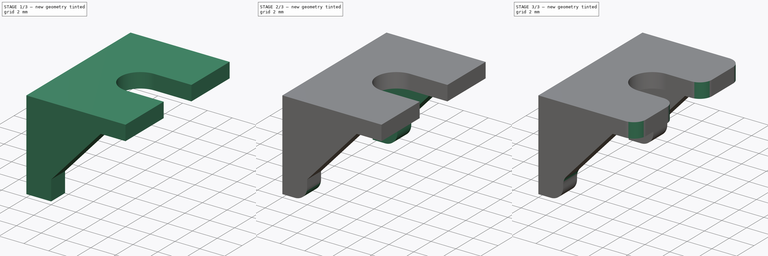
[diagram: build sequence overview — one tinted view per stage of 3, left to right]
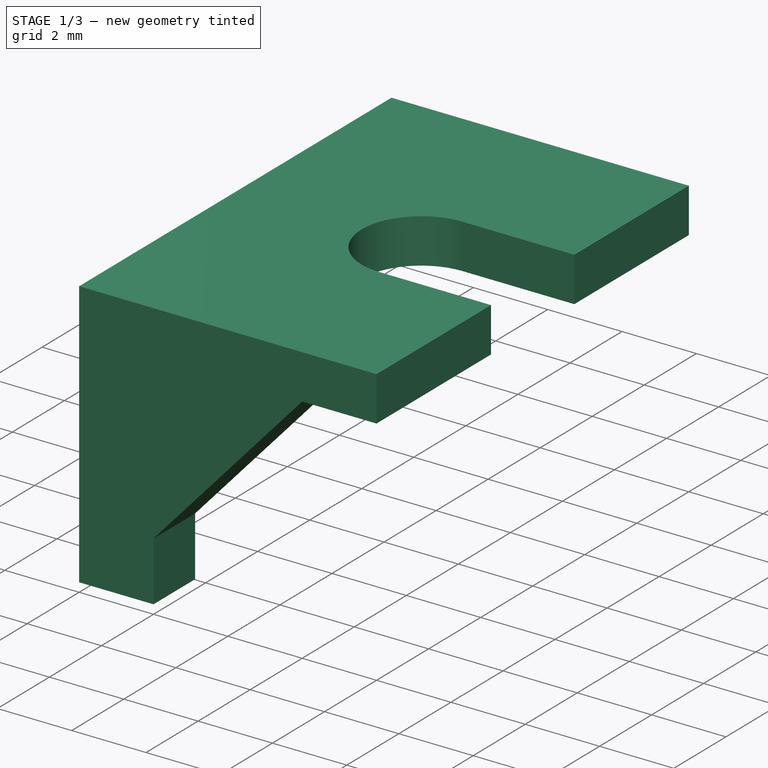
[diagram: stage 1 of 3 — iso view after this stage's code; geometry added in this stage tinted green]
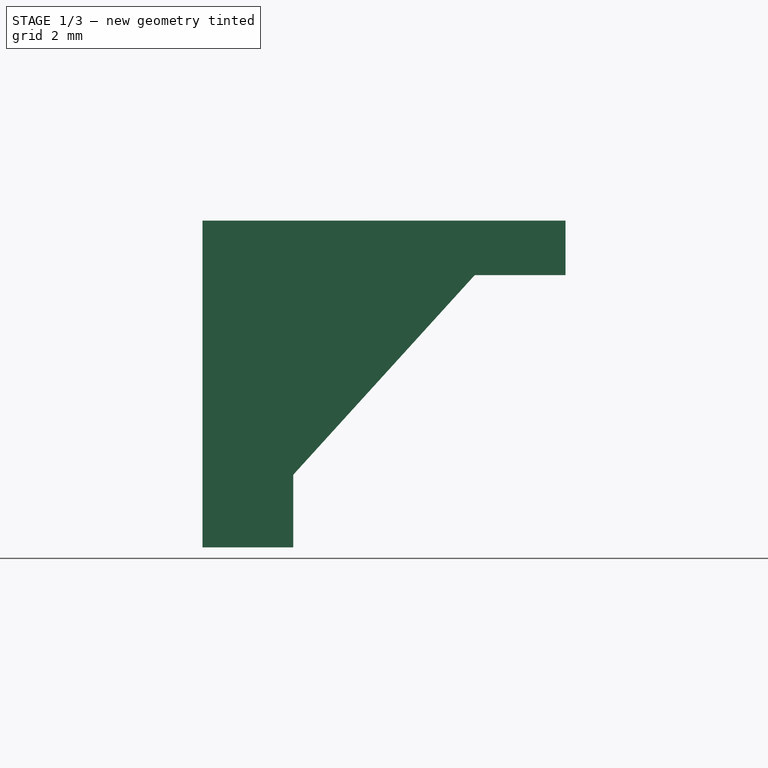
[diagram: stage 1 of 3 — front view after this stage's code; geometry added in this stage tinted green]
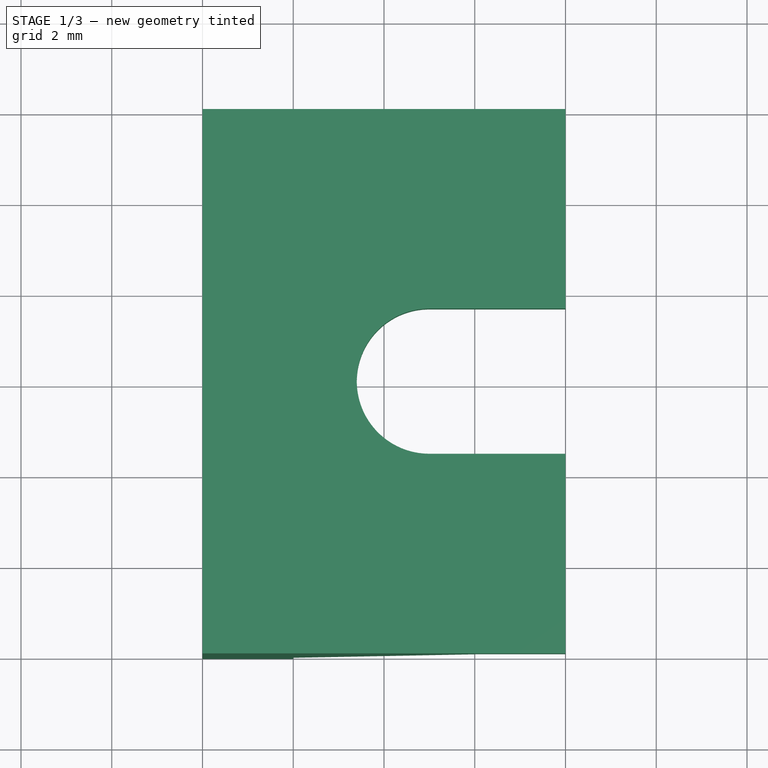
[diagram: stage 1 of 3 — top view after this stage's code; geometry added in this stage tinted green]
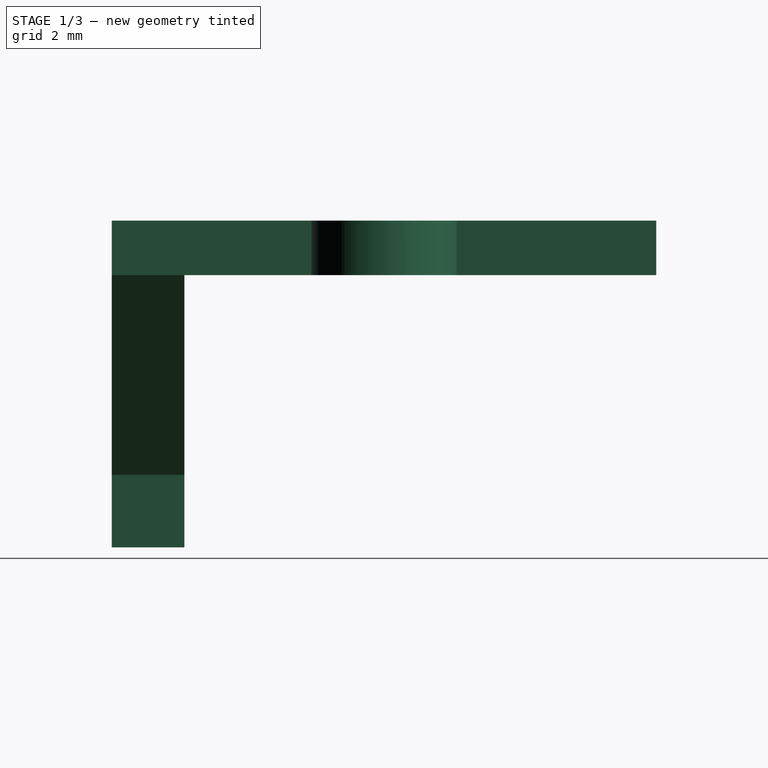
[diagram: stage 1 of 3 — right view after this stage's code; geometry added in this stage tinted green]
FCSTD DOCUMENT  (FreeCAD 0.20R29603 (Git))
Label: FixingTab
License: All rights reserved
LicenseURL: http://en.wikipedia.org/wiki/All_rights_reserved
objects: PartDesign::Fillet×3, Sketcher::SketchObject×2, PartDesign::Pad×2, Spreadsheet::Sheet×1, PartDesign::Plane×1, PartDesign::LinearPattern×1, PartDesign::Body×1
note: 15 computed .brp shape members not serialized (recipe doc carries the construction recipe); baked Part::Feature solids carry a one-line shape summary decoded from their .brp

FEATURE [Sketcher::SketchObject] Sketch
  FullyConstrained = true
  MapMode = 5
  Support = -> [XY_Plane]
  expr: Constraints[13] = <<Params>>.tab_length
  expr: Constraints[14] = <<Params>>.tab_width
  expr: Constraints[19] = <<Params>>.tab_hole_diameter
  expr: Constraints[20] = <<Params>>.tab_hole_x
  sketch-geometry (8):
    g0: LineSegment StartX=-4 StartY=6 StartZ=0 EndX=4 EndY=6 EndZ=0
    g1: LineSegment StartX=4 StartY=6 StartZ=0 EndX=4 EndY=1.6 EndZ=0
    g2: LineSegment StartX=4 StartY=-6 StartZ=0 EndX=-4 EndY=-6 EndZ=0
    g3: LineSegment StartX=-4 StartY=-6 StartZ=0 EndX=-4 EndY=6 EndZ=0
    g4: ArcOfCircle CenterX=1 CenterY=0 CenterZ=0 NormalX=0 NormalY=0 NormalZ=1 AngleXU=0 Radius=1.6 StartAngle=1.5708 EndAngle=4.71239
    g5: LineSegment StartX=1 StartY=1.6 StartZ=0 EndX=4 EndY=1.6 EndZ=0
    g6: LineSegment StartX=4 StartY=-1.6 StartZ=0 EndX=1 EndY=-1.6 EndZ=0
    g7: LineSegment StartX=4 StartY=-1.6 StartZ=0 EndX=4 EndY=-6 EndZ=0
  constraints (21):
    c: Coincident(g0,g1)
    c: Coincident(g7,g2)
    c: Coincident(g2,g3)
    c: Coincident(g3,g0)
    c: Horizontal(g2)
    c: Vertical(g1)
    c: Symmetric(g0,g0,g-2)
    c: Symmetric(g0,g2,g-1)
    c: PointOnObject(g4,g-1)
    c: Horizontal(g5)
    c: Horizontal(g6)
    c: Coincident(g1,g5)
    c: Coincident(g7,g6)
    c: DistanceX(g0,g0) = 8
    c: DistanceY(g2,g0) = 12
    c: Tangent(g4,g5) = 1.5708
    c: Tangent(g6,g4) = 1.5708
    c: Vertical(g7)
    c: Vertical(g6,g1)
    c: Diameter(g4) = 3.2
    c: DistanceX(g0,g4) = 5
FEATURE [Spreadsheet::Sheet] Spreadsheet  label="Params"
  cells = A1=tab_insertion; B1(tab_insertion)=1; A2=tab_width; B2(tab_width)=12; A3=tab_length; B3(tab_length)=8; A4=tab_height; B4(tab_height)=6; A5=tab_thickness; B5(tab_thickness)=1.2; A6=tab_rib_length; B6(tab_rib_length)=6; A7=tab_rib_height; B7(tab_rib_height)==B4 - B8; A8=tab_rib_thickness; B8(tab_rib_thickness)=1.6; A9=tab_hole_x; B9(tab_hole_x)=5; A10=tab_hole_y; B10(tab_hole_y)=0; A11=tab_hole_diameter; B11(tab_hole_diameter)=3.2; A12=tab_rib_insert; B12(tab_rib_insert)==2 * B1; A13=tab_ribs_gap; B13(tab_ribs_gap)==B2 - B8
FEATURE [PartDesign::Pad] Pad
  Direction = (0,0,1)
  Length = 1.2
  Length2 = 10
  Profile = -> Sketch
  ReferenceAxis = -> Sketch [N_Axis]
  Type = 0
  expr: Length = <<Params>>.tab_thickness
FEATURE [PartDesign::Plane] DatumPlane  label="PlaneRib"
  Length = 60
  MapMode = 5
  Placement = pos=(0,-6,0) rot=(1,0,0;1.5708rad)
  ResizeMode = 0
  Support = -> [Pad]
  Width = 60
FEATURE [Sketcher::SketchObject] Sketch001
  ExternalGeometry = -> [Pad]
  FullyConstrained = true
  MapMode = 5
  Placement = pos=(0,-6,0) rot=(1,0,0;1.5708rad)
  Support = -> [DatumPlane]
  expr: Constraints[11] = <<Params>>.tab_rib_height
  expr: Constraints[12] = <<Params>>.tab_rib_length
  expr: Constraints[13] = <<Params>>.tab_rib_insert
  expr: Constraints[6] = <<Params>>.tab_height
  sketch-geometry (5):
    g0: LineSegment StartX=-4 StartY=0 StartZ=0 EndX=-4 EndY=-6 EndZ=0
    g1: LineSegment StartX=-4 StartY=-6 StartZ=0 EndX=-2 EndY=-6 EndZ=0
    g2: LineSegment StartX=2 StartY=0 StartZ=0 EndX=-4 EndY=0 EndZ=0
    g3: LineSegment StartX=-2 StartY=-6 StartZ=0 EndX=-2 EndY=-4.4 EndZ=0
    g4: LineSegment StartX=-2 StartY=-4.4 StartZ=0 EndX=2 EndY=0 EndZ=0
  constraints (14):
    c: Coincident(g0,g-3)
    c: Vertical(g0)
    c: Coincident(g1,g0)
    c: PointOnObject(g2,g-1)
    c: Coincident(g2,g0)
    c: Horizontal(g1)
    c: DistanceY(g0,g0) = 6
    c: Coincident(g3,g1)
    c: Vertical(g3)
    c: Coincident(g4,g3)
    c: Coincident(g4,g2)
    c: DistanceY(g3,g-1) = 4.4
    c: DistanceX(g0,g2) = 6
    c: DistanceX(g0,g1) = 2
FEATURE [PartDesign::Pad] Pad001  label="TabRib1"
  BaseFeature = -> Pad
  Direction = (0,-1,2e-16)
  Length = 1.6
  Length2 = 10
  Profile = -> Sketch001
  ReferenceAxis = -> Sketch001 [N_Axis]
  Reversed = true
  Type = 0
  expr: Length = <<Params>>.tab_rib_thickness
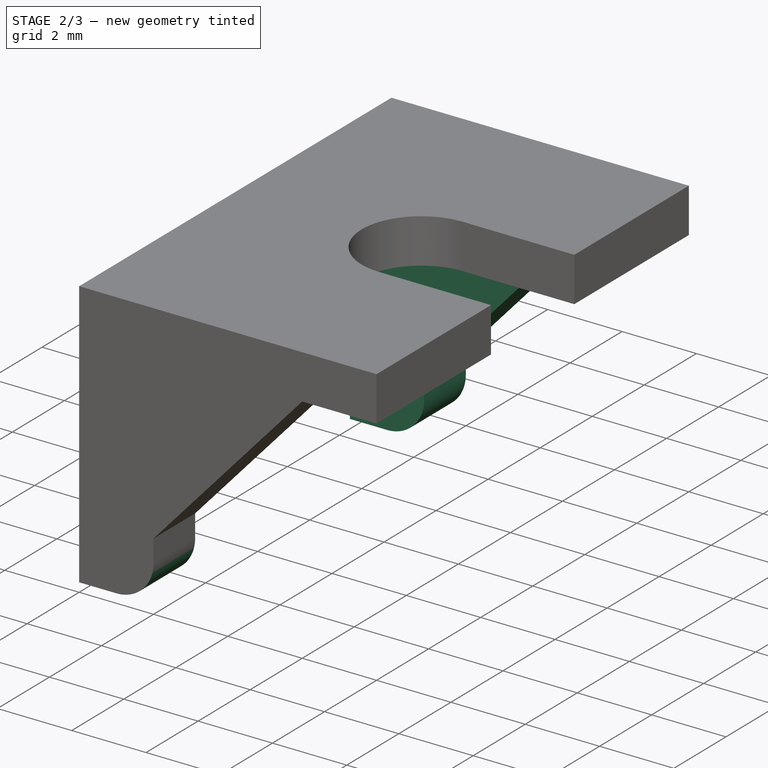
[diagram: stage 2 of 3 — iso view after this stage's code; geometry added in this stage tinted green]
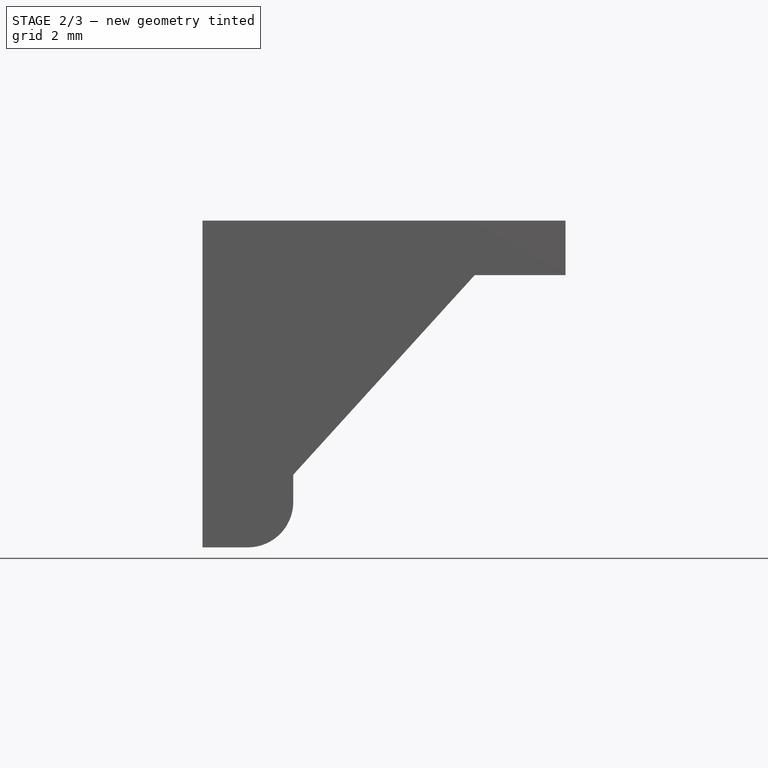
[diagram: stage 2 of 3 — front view after this stage's code; geometry added in this stage tinted green]
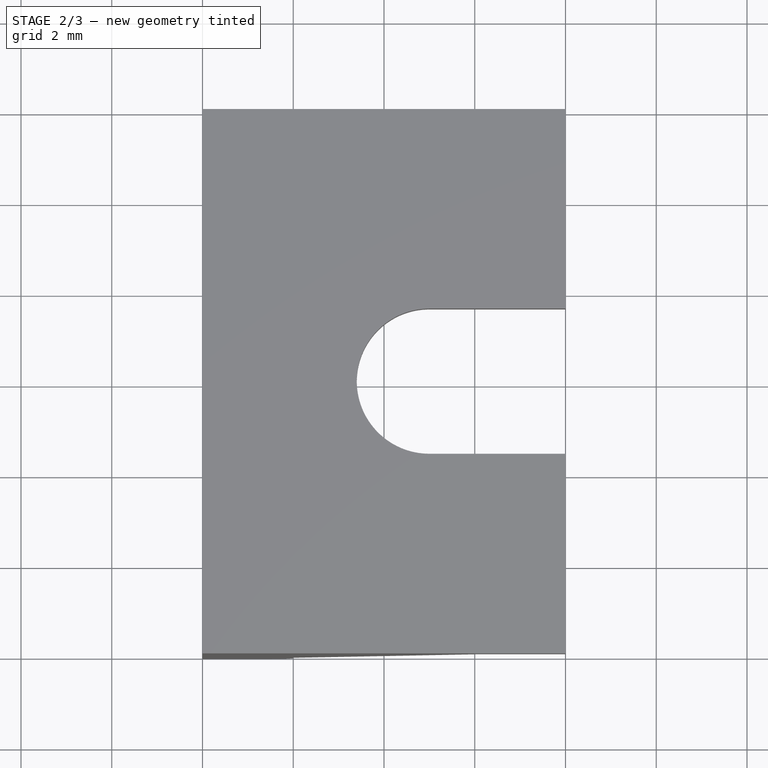
[diagram: stage 2 of 3 — top view after this stage's code; geometry added in this stage tinted green]
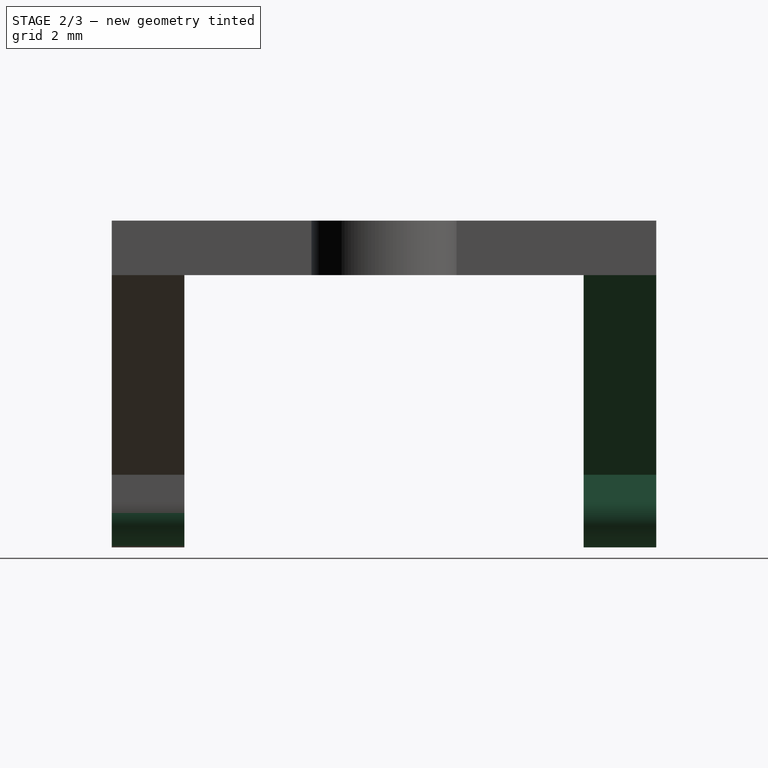
[diagram: stage 2 of 3 — right view after this stage's code; geometry added in this stage tinted green]
FEATURE [PartDesign::LinearPattern] LinearPattern  label="TabRib2"
  BaseFeature = -> Pad001
  Direction = -> Y_Axis
  Length = 10.4
  Occurrences = 2
  Originals = -> [Pad001]
  expr: Length = <<Params>>.tab_ribs_gap
FEATURE [PartDesign::Fillet] Fillet  label="FilletRibInsert"
  Base = -> LinearPattern [Edge51,Edge52]
  BaseFeature = -> LinearPattern
  Radius = 1
  SupportTransform = false
  UseAllEdges = false
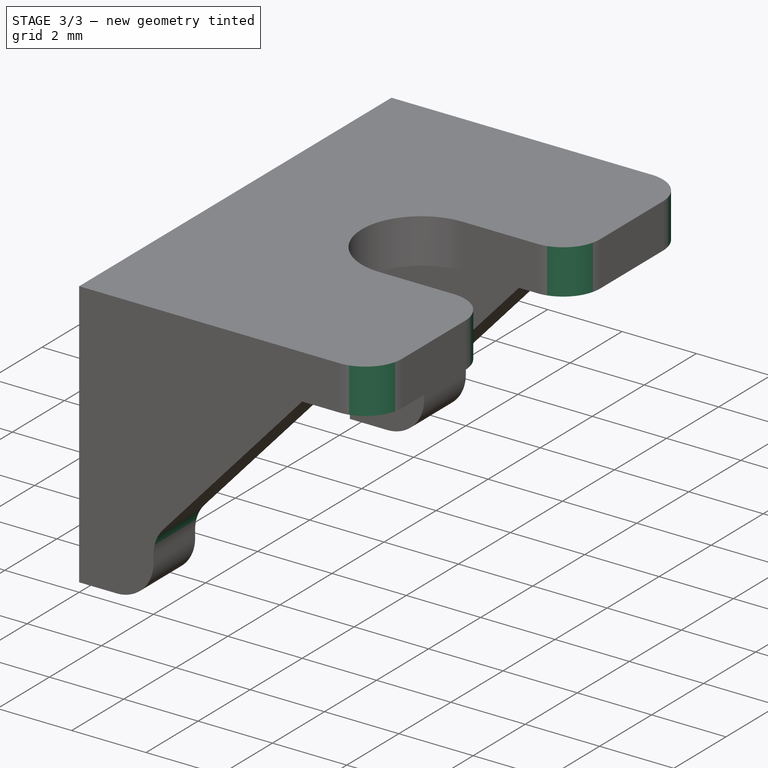
[diagram: stage 3 of 3 — iso view after this stage's code; geometry added in this stage tinted green]
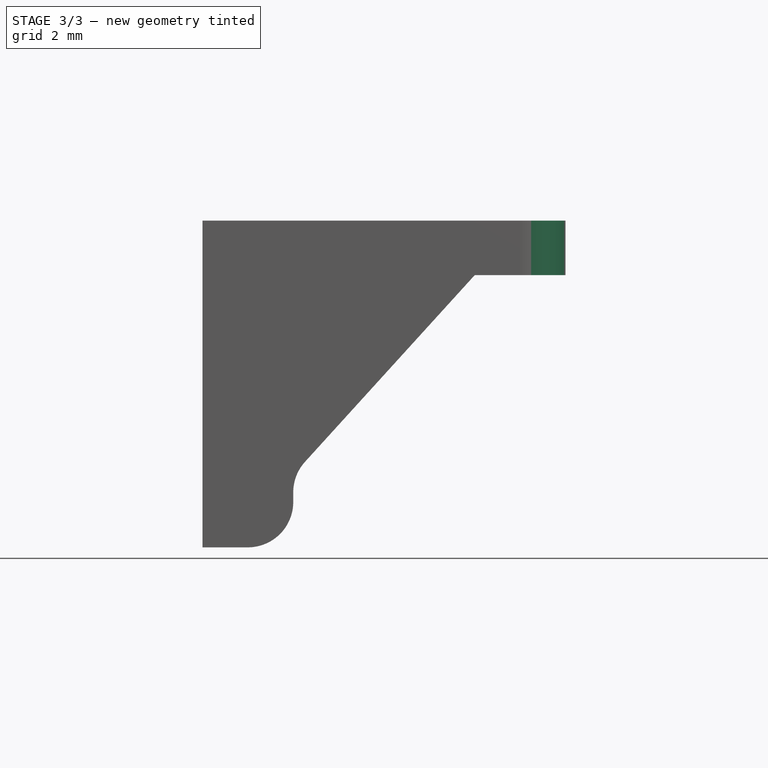
[diagram: stage 3 of 3 — front view after this stage's code; geometry added in this stage tinted green]
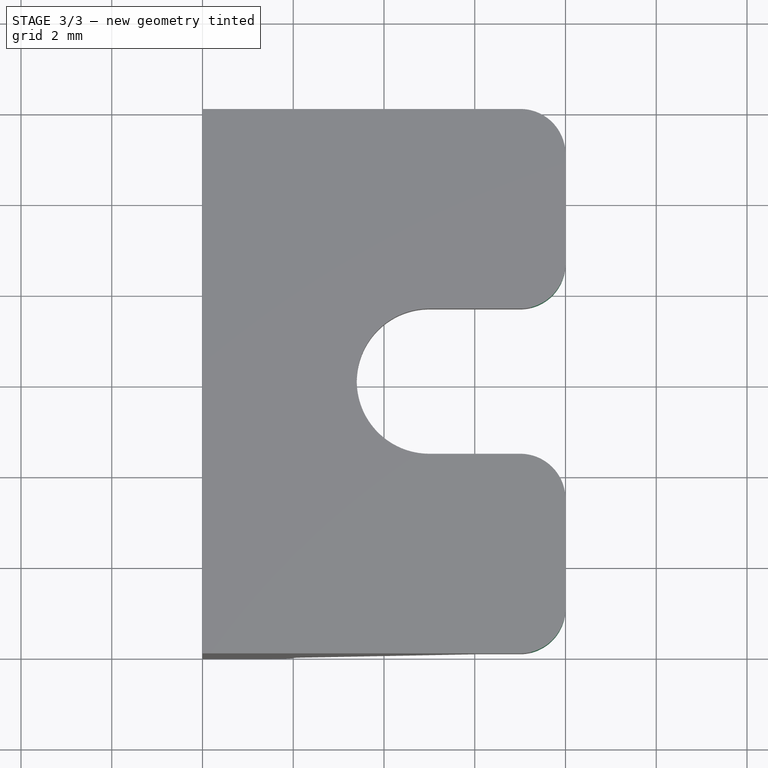
[diagram: stage 3 of 3 — top view after this stage's code; geometry added in this stage tinted green]
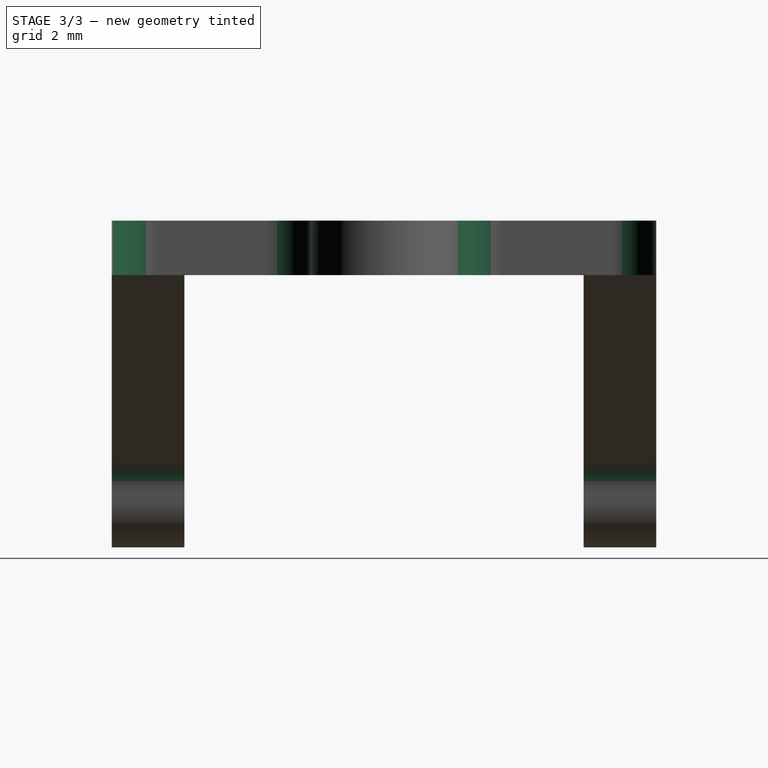
[diagram: stage 3 of 3 — right view after this stage's code; geometry added in this stage tinted green]
FEATURE [PartDesign::Fillet] Fillet001  label="FilletRibSmooth"
  Base = -> Fillet [Edge14,Edge52]
  BaseFeature = -> Fillet
  Radius = 1
  SupportTransform = false
  UseAllEdges = false
FEATURE [PartDesign::Fillet] Fillet002  label="FilletTable"
  Base = -> Fillet001 [Edge19,Edge35,Edge55,Edge53]
  BaseFeature = -> Fillet001
  Radius = 1
  SupportTransform = false
  UseAllEdges = false
FEATURE [PartDesign::Body] Body
  Group = -> [Sketch,Pad,DatumPlane,Sketch001,Pad001,LinearPattern,Fillet,Fillet001,Fillet002]
  Origin = -> Origin
  Tip = -> Fillet002
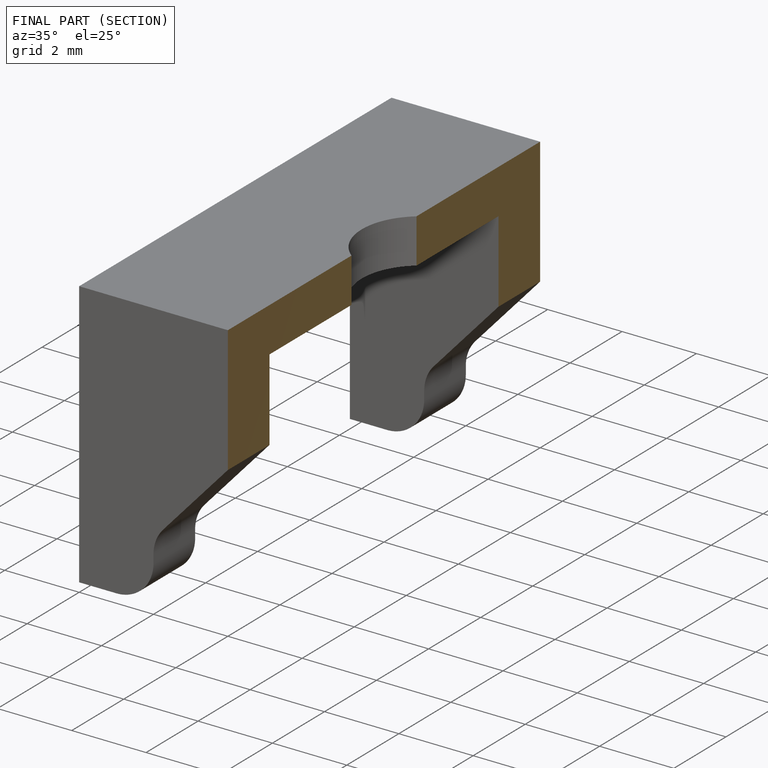
[diagram: finished part — half-section view (interior)]
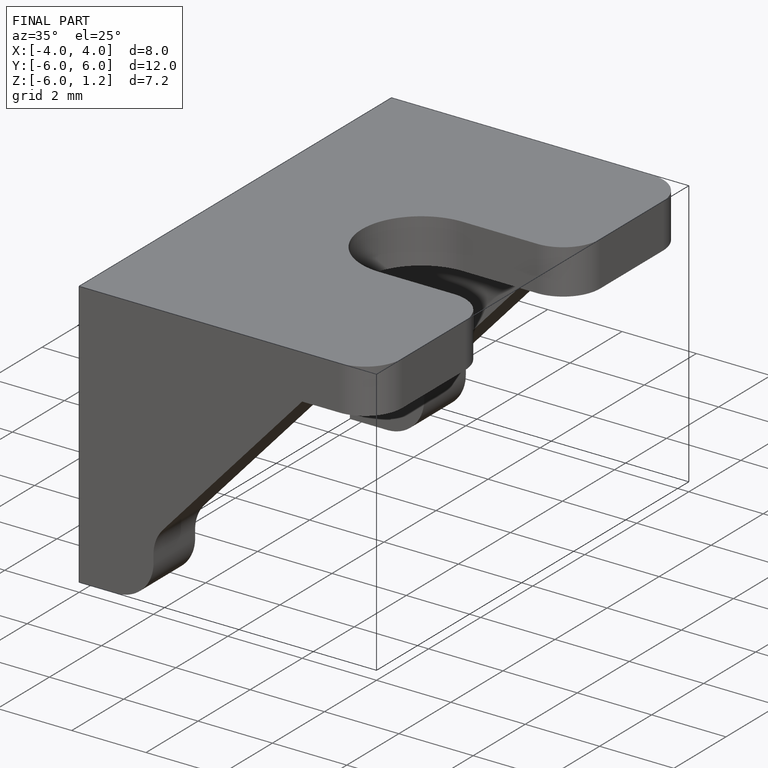
[diagram: finished part — iso view with bounding-box wireframe]
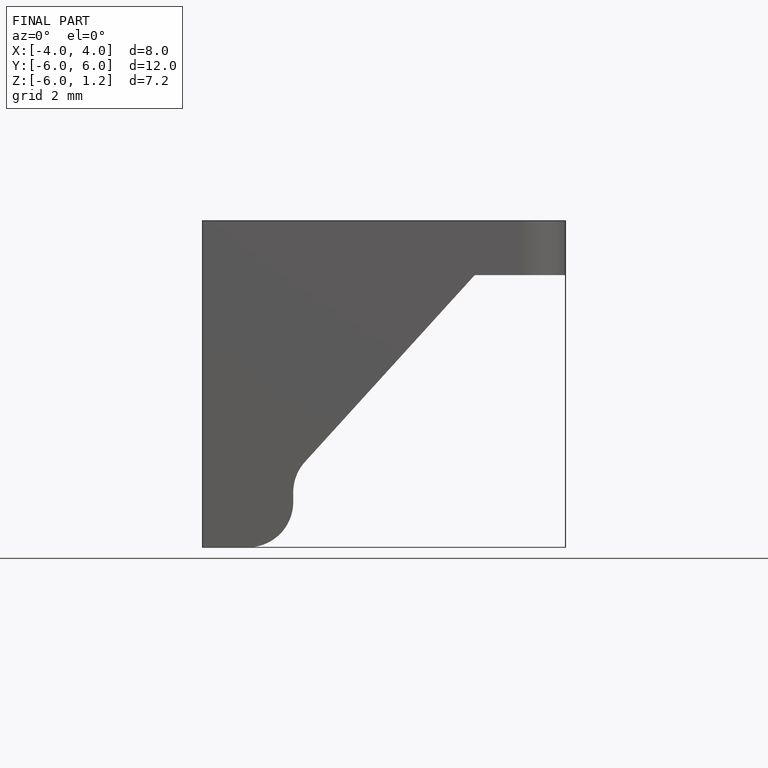
[diagram: finished part — front view with bounding-box wireframe]
